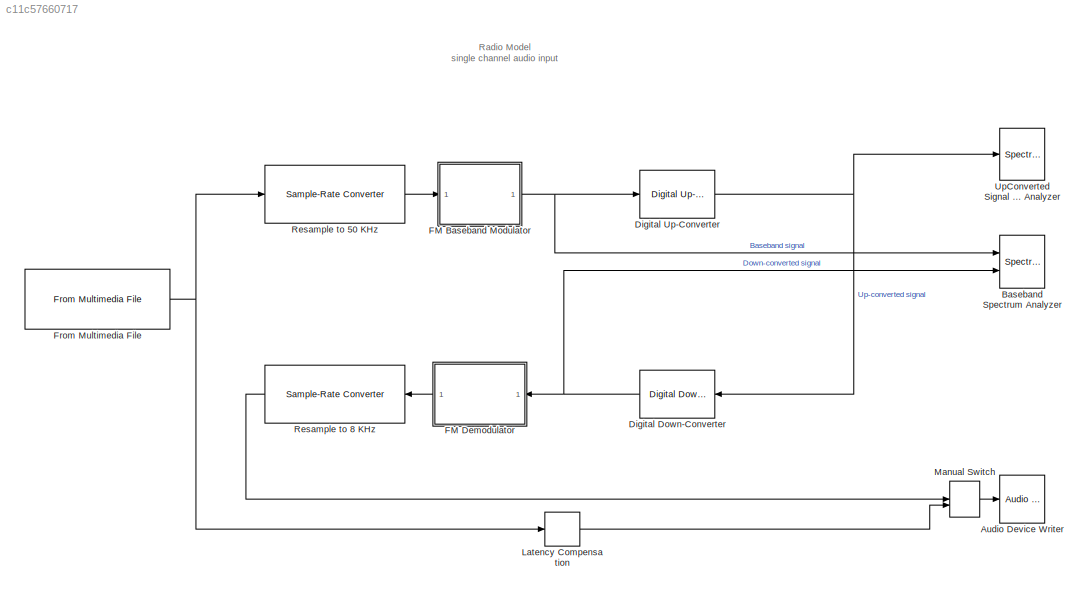
MODEL slx_c11c57660717
KIND model
CONFIG AbsTol = auto
CONFIG EnableMultiTasking = on
CONFIG FixedStep = auto
CONFIG MaxStep = auto
CONFIG MinStep = auto
CONFIG RelTol = 1e-3
CONFIG SampleTimeConstraint = Unconstrained
CONFIG Solver = FixedStepDiscrete
CONFIG SolverName = FixedStepDiscrete
CONFIG StartTime = 0.0
CONFIG StopTime = 10
BLOCK [Reference] Audio Device Writer  REF=dspsnks4/Audio Device
Writer
  Commented = on
  NameLocation = top
  Ports = [1]
  SourceBlock = dspsnks4/Audio Device\nWriter
  SourceProductBaseCode = DS
  SourceType = Audio Device Writer
BLOCK [SpectrumAnalyzer] Baseband Spectrum Analyzer
  Commented = on
  NumInputPorts = 2
  Ports = [2]
  ScopeSpecificationString = spbscopes.SpectrumAnalyzerBlockCfg('CurrentConfiguration', extmgr.ConfigurationSet(extmgr.Configuration('Core','General UI',true),extmgr.Configuration('Core','Source UI',true),extmgr.Configuration('Sources','WiredSimulink',true),extmgr.Configuration('Sources','Streaming',false),extmgr.Configuration('Sources','SPTool',false),extmgr.Configuration('Sources','Workspace',false),extmgr.Configuration('So...<+2725ch>
BLOCK [Reference] Digital Down-Converter  REF=dspsigops/Digital
Down-Converter
  NameLocation = top
  Ports = [1, 1]
  SourceBlock = dspsigops/Digital\nDown-Converter
  SourceProductBaseCode = DS
  SourceType = dsp.DigitalDownConverter
BLOCK [Reference] Digital Up-Converter  REF=dspsigops/Digital
Up-Converter
  Ports = [1, 1]
  SourceBlock = dspsigops/Digital\nUp-Converter
  SourceProductBaseCode = DS
  SourceType = dsp.DigitalUpConverter
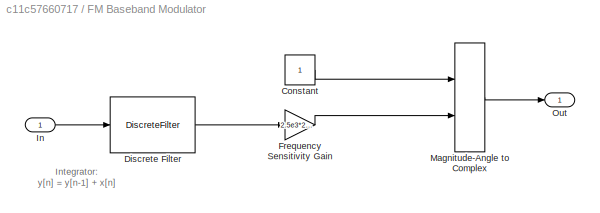
BLOCK [SubSystem] FM Baseband Modulator
  Ports = [1, 1]
  RequestExecContextInheritance = off
BLOCK [Constant] FM Baseband Modulator/Constant
  SampleTime = -1
BLOCK [DiscreteFilter] FM Baseband Modulator/Discrete Filter
  Denominator = [1 -1]
  FilterStructure = Direct form II transposed
  InputPortMap = u0
  InputProcessing = Columns as channels (frame based)
  Numerator = 1
  Ports = [1, 1]
  a0EqualsOne = on
BLOCK [Gain] FM Baseband Modulator/Frequency Sensitivity Gain
  Gain = 2.5e3*2*pi/50e3
BLOCK [Inport] FM Baseband Modulator/In
BLOCK [MagnitudeAngleToComplex] FM Baseband Modulator/Magnitude-Angle to Complex
  Ports = [2, 1]
BLOCK [Outport] FM Baseband Modulator/Out
  NameLocation = top
  VectorParamsAs1DForOutWhenUnconnected = off
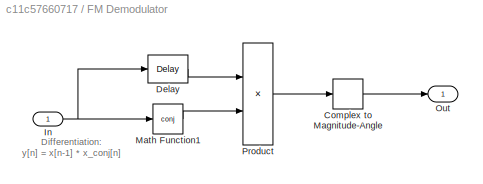
BLOCK [SubSystem] FM Demodulator
  NameLocation = top
  Ports = [1, 1]
  RequestExecContextInheritance = off
BLOCK [ComplexToMagnitudeAngle] FM Demodulator/Complex to Magnitude-Angle
  Output = Angle
  Ports = [1, 1]
BLOCK [Delay] FM Demodulator/Delay
  DelayLength = 1
  InitialCondition = 0
  InputPortMap = u0
  InputProcessing = Columns as channels (frame based)
  Ports = [1, 1]
  UserDataPersistent = on
BLOCK [Inport] FM Demodulator/In
BLOCK [Math] FM Demodulator/Math Function1
  Operator = conj
  Ports = [1, 1]
  SignedPower = on
BLOCK [Outport] FM Demodulator/Out
  VectorParamsAs1DForOutWhenUnconnected = off
BLOCK [Product] FM Demodulator/Product
  Ports = [2, 1]
  RndMeth = Zero
BLOCK [Reference] From Multimedia File  REF=dspvision/From Multimedia File
  Ports = [0, 1]
  SourceBlock = dspvision/From Multimedia File
  SourceProductBaseCode = DS,HW,VP
  SourceType = From Multimedia File
BLOCK [Delay] Latency Compensation
  DelayLength = 0
  InputPortMap = u0
  InputProcessing = Columns as channels (frame based)
  Ports = [1, 1]
BLOCK [ManualSwitch] Manual Switch
  CurrentSetting = 0
BLOCK [Reference] Resample to 50 KHz  REF=dspsigops/Sample-Rate
Converter
  Ports = [1, 1]
  SourceBlock = dspsigops/Sample-Rate\nConverter
  SourceProductBaseCode = DS
  SourceType = dsp.SampleRateConverter
BLOCK [Reference] Resample to 8 KHz  REF=dspsigops/Sample-Rate
Converter
  NameLocation = top
  Ports = [1, 1]
  SourceBlock = dspsigops/Sample-Rate\nConverter
  SourceProductBaseCode = DS
  SourceType = dsp.SampleRateConverter
BLOCK [SpectrumAnalyzer] UpConverted Signal Spectrum Analyzer
  Commented = on
  Ports = [1]
  ScopeSpecificationString = spbscopes.SpectrumAnalyzerBlockCfg('CurrentConfiguration', extmgr.ConfigurationSet(extmgr.Configuration('Core','General UI',true),extmgr.Configuration('Core','Source UI',true),extmgr.Configuration('Sources','WiredSimulink',true),extmgr.Configuration('Sources','Simulink',false),extmgr.Configuration('Sources','File',false),extmgr.Configuration('Sources','SPTool',false),extmgr.Configuration('Sources'...<+2588ch>
ANNOTATION (root): Radio Model single channel audio input
ANNOTATION FM Baseband Modulator: Integrator: y[n] = y[n-1] + x[n]
ANNOTATION FM Demodulator: Differentiation: y[n] = x[n-1] * x_conj[n]
NET Digital Down-Converter:1 -> Baseband Spectrum Analyzer:2, FM Demodulator:1
NET Digital Up-Converter:1 -> Digital Down-Converter:1, UpConverted Signal Spectrum Analyzer:1
LINE FM Baseband Modulator/Constant:1 -> FM Baseband Modulator/Magnitude-Angle to Complex:1
LINE FM Baseband Modulator/Discrete Filter:1 -> FM Baseband Modulator/Frequency Sensitivity Gain:1
LINE FM Baseband Modulator/Frequency Sensitivity Gain:1 -> FM Baseband Modulator/Magnitude-Angle to Complex:2
LINE FM Baseband Modulator/In:1 -> FM Baseband Modulator/Discrete Filter:1
LINE FM Baseband Modulator/Magnitude-Angle to Complex:1 -> FM Baseband Modulator/Out:1
NET FM Baseband Modulator:1 -> Baseband Spectrum Analyzer:1, Digital Up-Converter:1
LINE FM Demodulator/Complex to Magnitude-Angle:1 -> FM Demodulator/Out:1
LINE FM Demodulator/Delay:1 -> FM Demodulator/Product:1
NET FM Demodulator/In:1 -> FM Demodulator/Delay:1, FM Demodulator/Math Function1:1
LINE FM Demodulator/Math Function1:1 -> FM Demodulator/Product:2
LINE FM Demodulator/Product:1 -> FM Demodulator/Complex to Magnitude-Angle:1
LINE FM Demodulator:1 -> Resample to 8 KHz:1
NET From Multimedia File:1 -> Latency Compensation:1, Resample to 50 KHz:1
LINE Latency Compensation:1 -> Manual Switch:2
LINE Manual Switch:1 -> Audio Device Writer:1
LINE Resample to 50 KHz:1 -> FM Baseband Modulator:1
LINE Resample to 8 KHz:1 -> Manual Switch:1
note: NET lines group one-source signal fan-out (src -> all destinations, sorted); 1:1 wires keep LINE
